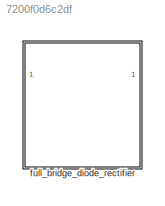
MODEL slx_7200f0d6c2df
KIND library
CONFIG AbsTol = auto
CONFIG EnableMultiTasking = off
CONFIG FixedStep = auto
CONFIG MaxStep = auto
CONFIG MinStep = auto
CONFIG RelTol = 1e-3
CONFIG SampleTimeConstraint = Unconstrained
CONFIG SolverName = VariableStepAuto
CONFIG StartTime = 0.0
CONFIG StopTime = 10.0
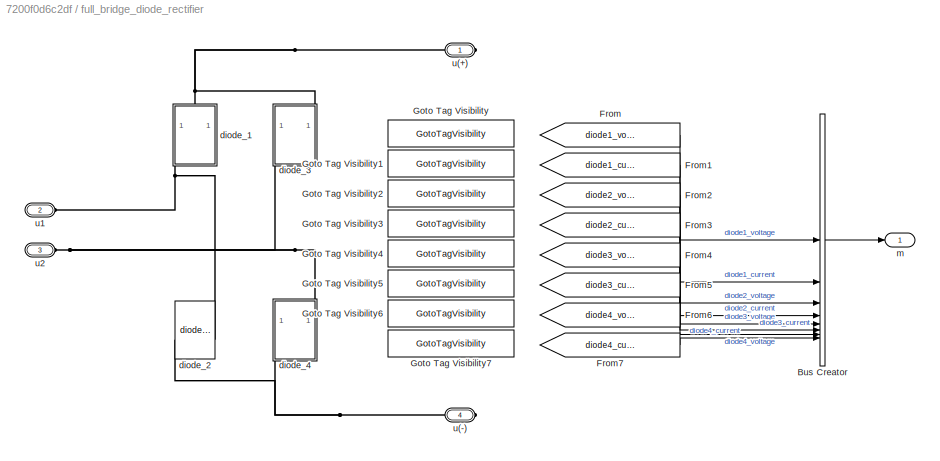
BLOCK [SubSystem] full_bridge_diode_rectifier
BLOCK [BusCreator] full_bridge_diode_rectifier/Bus Creator
  DisplayOption = bar
  InheritFromInputs = on
  Inputs = 8
BLOCK [From] full_bridge_diode_rectifier/From
  GotoTag = diode1_voltage
  TagVisibility = scoped
BLOCK [From] full_bridge_diode_rectifier/From1
  GotoTag = diode1_current
  TagVisibility = scoped
BLOCK [From] full_bridge_diode_rectifier/From2
  GotoTag = diode2_voltage
  TagVisibility = scoped
BLOCK [From] full_bridge_diode_rectifier/From3
  GotoTag = diode2_current
  TagVisibility = scoped
BLOCK [From] full_bridge_diode_rectifier/From4
  GotoTag = diode3_voltage
  TagVisibility = scoped
BLOCK [From] full_bridge_diode_rectifier/From5
  GotoTag = diode3_current
  TagVisibility = scoped
BLOCK [From] full_bridge_diode_rectifier/From6
  GotoTag = diode4_voltage
  TagVisibility = scoped
BLOCK [From] full_bridge_diode_rectifier/From7
  GotoTag = diode4_current
  TagVisibility = scoped
BLOCK [GotoTagVisibility] full_bridge_diode_rectifier/Goto Tag Visibility
  GotoTag = diode1_voltage
BLOCK [GotoTagVisibility] full_bridge_diode_rectifier/Goto Tag Visibility1
  GotoTag = diode1_current
BLOCK [GotoTagVisibility] full_bridge_diode_rectifier/Goto Tag Visibility2
  GotoTag = diode2_voltage
BLOCK [GotoTagVisibility] full_bridge_diode_rectifier/Goto Tag Visibility3
  GotoTag = diode2_current
BLOCK [GotoTagVisibility] full_bridge_diode_rectifier/Goto Tag Visibility4
  GotoTag = diode3_voltage
BLOCK [GotoTagVisibility] full_bridge_diode_rectifier/Goto Tag Visibility5
  GotoTag = diode3_current
BLOCK [GotoTagVisibility] full_bridge_diode_rectifier/Goto Tag Visibility6
  GotoTag = diode4_voltage
BLOCK [GotoTagVisibility] full_bridge_diode_rectifier/Goto Tag Visibility7
  GotoTag = diode4_current
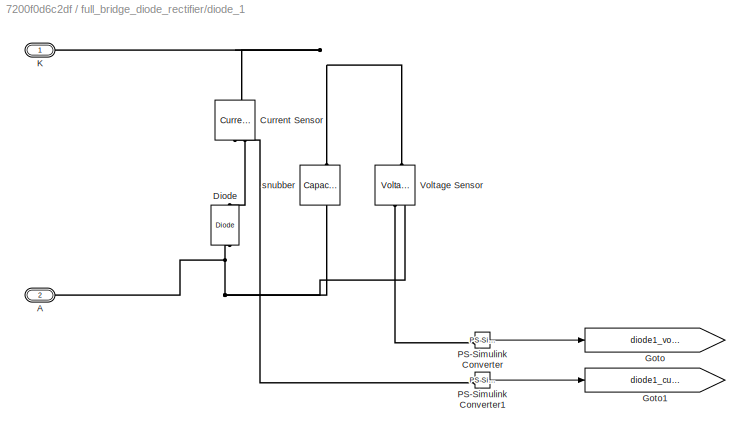
BLOCK [SubSystem] full_bridge_diode_rectifier/diode_1
  NameLocation = left
  PortSchema = {"entries":[{"content":{"sides":[{"content":{},"type":"ConnectorPlacement.EquallySpacedRectSide","uuid":"9277da8d-d460-43e6-8478-dd662f15d226"},{"content":{"side":"RIGHT"},"type":"ConnectorPlacement.EquallySpacedRectSide","uuid":"a7ece396-f1d9-4f4f-a05b-db1fc65d6e1d"},{"content":{"connectorIds":["LConn1"],"side":"TOP"},"type":"ConnectorPlacement.EquallySpacedRectSide","uuid":"fdd70777-e9cf-4317-af...<+354ch>  <repeated x3 — deduplicated; at blocks: diode_1, diode_3, diode_4>
BLOCK [PMIOPort] full_bridge_diode_rectifier/diode_1/A
  NameLocation = top
  Port = 2
  Side = Right
BLOCK [Reference] full_bridge_diode_rectifier/diode_1/Current Sensor  REF=fl_lib/Electrical/Electrical Sensors/Current Sensor
  NameLocation = left
  SourceBlock = fl_lib/Electrical/Electrical Sensors/Current Sensor
  SourceType = Current Sensor
BLOCK [Reference] full_bridge_diode_rectifier/diode_1/Diode  REF=fl_lib/Electrical/Electrical Elements/Diode
  NameLocation = right
  SourceBlock = fl_lib/Electrical/Electrical Elements/Diode
  SourceType = Diode
BLOCK [Goto] full_bridge_diode_rectifier/diode_1/Goto
  GotoTag = diode1_voltage
  TagVisibility = scoped
BLOCK [Goto] full_bridge_diode_rectifier/diode_1/Goto1
  GotoTag = diode1_current
  TagVisibility = scoped
BLOCK [PMIOPort] full_bridge_diode_rectifier/diode_1/K
  NameLocation = top
  Side = Left
BLOCK [Reference] full_bridge_diode_rectifier/diode_1/PS-Simulink Converter  REF=nesl_utility/PS-Simulink
Converter
  SourceBlock = nesl_utility/PS-Simulink\nConverter
  SourceType = PS-Simulink\nConverter
BLOCK [Reference] full_bridge_diode_rectifier/diode_1/PS-Simulink Converter1  REF=nesl_utility/PS-Simulink
Converter
  SourceBlock = nesl_utility/PS-Simulink\nConverter
  SourceType = PS-Simulink\nConverter
BLOCK [Reference] full_bridge_diode_rectifier/diode_1/Voltage Sensor  REF=fl_lib/Electrical/Electrical Sensors/Voltage Sensor
  NameLocation = right
  SourceBlock = fl_lib/Electrical/Electrical Sensors/Voltage Sensor
  SourceType = Voltage Sensor
BLOCK [Reference] full_bridge_diode_rectifier/diode_1/snubber  REF=fl_lib/Electrical/Electrical Elements/Capacitor
  NameLocation = left
  SourceBlock = fl_lib/Electrical/Electrical Elements/Capacitor
  SourceType = Capacitor
BLOCK [Reference] full_bridge_diode_rectifier/diode_2  REF=$bdroot/full_bridge_diode_rectifier/diode_1
  NameLocation = left
  SourceBlock = $bdroot/full_bridge_diode_rectifier/diode_1
  SourceType = SubSystem
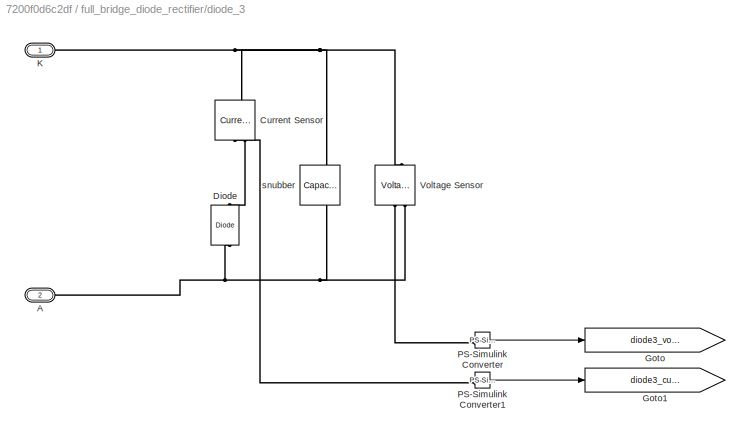
BLOCK [SubSystem] full_bridge_diode_rectifier/diode_3
  NameLocation = left
BLOCK [PMIOPort] full_bridge_diode_rectifier/diode_3/A
  NameLocation = top
  Port = 2
  Side = Right
BLOCK [Reference] full_bridge_diode_rectifier/diode_3/Current Sensor  REF=fl_lib/Electrical/Electrical Sensors/Current Sensor
  NameLocation = left
  SourceBlock = fl_lib/Electrical/Electrical Sensors/Current Sensor
  SourceType = Current Sensor
BLOCK [Reference] full_bridge_diode_rectifier/diode_3/Diode  REF=fl_lib/Electrical/Electrical Elements/Diode
  NameLocation = right
  SourceBlock = fl_lib/Electrical/Electrical Elements/Diode
  SourceType = Diode
BLOCK [Goto] full_bridge_diode_rectifier/diode_3/Goto
  GotoTag = diode3_voltage
  TagVisibility = scoped
BLOCK [Goto] full_bridge_diode_rectifier/diode_3/Goto1
  GotoTag = diode3_current
  TagVisibility = scoped
BLOCK [PMIOPort] full_bridge_diode_rectifier/diode_3/K
  NameLocation = top
  Side = Left
BLOCK [Reference] full_bridge_diode_rectifier/diode_3/PS-Simulink Converter  REF=nesl_utility/PS-Simulink
Converter
  SourceBlock = nesl_utility/PS-Simulink\nConverter
  SourceType = PS-Simulink\nConverter
BLOCK [Reference] full_bridge_diode_rectifier/diode_3/PS-Simulink Converter1  REF=nesl_utility/PS-Simulink
Converter
  SourceBlock = nesl_utility/PS-Simulink\nConverter
  SourceType = PS-Simulink\nConverter
BLOCK [Reference] full_bridge_diode_rectifier/diode_3/Voltage Sensor  REF=fl_lib/Electrical/Electrical Sensors/Voltage Sensor
  NameLocation = right
  SourceBlock = fl_lib/Electrical/Electrical Sensors/Voltage Sensor
  SourceType = Voltage Sensor
BLOCK [Reference] full_bridge_diode_rectifier/diode_3/snubber  REF=fl_lib/Electrical/Electrical Elements/Capacitor
  NameLocation = left
  SourceBlock = fl_lib/Electrical/Electrical Elements/Capacitor
  SourceType = Capacitor
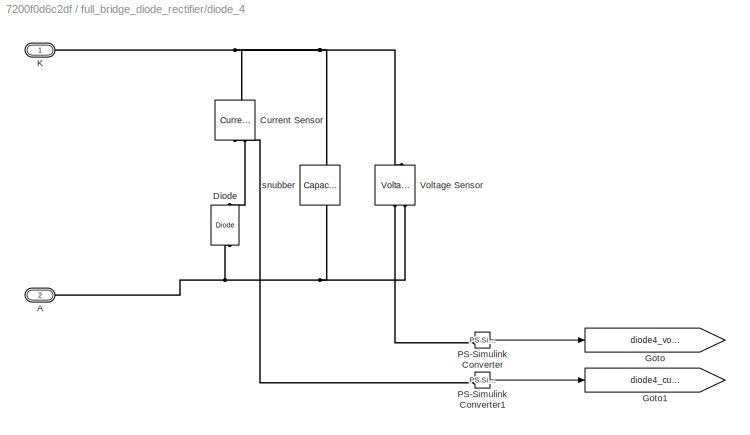
BLOCK [SubSystem] full_bridge_diode_rectifier/diode_4
  NameLocation = left
BLOCK [PMIOPort] full_bridge_diode_rectifier/diode_4/A
  NameLocation = top
  Port = 2
  Side = Right
BLOCK [Reference] full_bridge_diode_rectifier/diode_4/Current Sensor  REF=fl_lib/Electrical/Electrical Sensors/Current Sensor
  NameLocation = left
  SourceBlock = fl_lib/Electrical/Electrical Sensors/Current Sensor
  SourceType = Current Sensor
BLOCK [Reference] full_bridge_diode_rectifier/diode_4/Diode  REF=fl_lib/Electrical/Electrical Elements/Diode
  NameLocation = right
  SourceBlock = fl_lib/Electrical/Electrical Elements/Diode
  SourceType = Diode
BLOCK [Goto] full_bridge_diode_rectifier/diode_4/Goto
  GotoTag = diode4_voltage
  TagVisibility = scoped
BLOCK [Goto] full_bridge_diode_rectifier/diode_4/Goto1
  GotoTag = diode4_current
  TagVisibility = scoped
BLOCK [PMIOPort] full_bridge_diode_rectifier/diode_4/K
  NameLocation = top
  Side = Left
BLOCK [Reference] full_bridge_diode_rectifier/diode_4/PS-Simulink Converter  REF=nesl_utility/PS-Simulink
Converter
  SourceBlock = nesl_utility/PS-Simulink\nConverter
  SourceType = PS-Simulink\nConverter
BLOCK [Reference] full_bridge_diode_rectifier/diode_4/PS-Simulink Converter1  REF=nesl_utility/PS-Simulink
Converter
  SourceBlock = nesl_utility/PS-Simulink\nConverter
  SourceType = PS-Simulink\nConverter
BLOCK [Reference] full_bridge_diode_rectifier/diode_4/Voltage Sensor  REF=fl_lib/Electrical/Electrical Sensors/Voltage Sensor
  NameLocation = right
  SourceBlock = fl_lib/Electrical/Electrical Sensors/Voltage Sensor
  SourceType = Voltage Sensor
BLOCK [Reference] full_bridge_diode_rectifier/diode_4/snubber  REF=fl_lib/Electrical/Electrical Elements/Capacitor
  NameLocation = left
  SourceBlock = fl_lib/Electrical/Electrical Elements/Capacitor
  SourceType = Capacitor
BLOCK [Outport] full_bridge_diode_rectifier/m
BLOCK [PMIOPort] full_bridge_diode_rectifier/u(+)
  Side = Right
BLOCK [PMIOPort] full_bridge_diode_rectifier/u(-)
  Port = 4
  Side = Right
BLOCK [PMIOPort] full_bridge_diode_rectifier/u1
  Port = 2
  Side = Left
BLOCK [PMIOPort] full_bridge_diode_rectifier/u2
  Port = 3
  Side = Left
LINE full_bridge_diode_rectifier/Bus Creator:1 -> full_bridge_diode_rectifier/m:1
LINE full_bridge_diode_rectifier/From1:1 -> full_bridge_diode_rectifier/Bus Creator:2
LINE full_bridge_diode_rectifier/From2:1 -> full_bridge_diode_rectifier/Bus Creator:3
LINE full_bridge_diode_rectifier/From3:1 -> full_bridge_diode_rectifier/Bus Creator:4
LINE full_bridge_diode_rectifier/From4:1 -> full_bridge_diode_rectifier/Bus Creator:5
LINE full_bridge_diode_rectifier/From5:1 -> full_bridge_diode_rectifier/Bus Creator:6
LINE full_bridge_diode_rectifier/From6:1 -> full_bridge_diode_rectifier/Bus Creator:7
LINE full_bridge_diode_rectifier/From7:1 -> full_bridge_diode_rectifier/Bus Creator:8
LINE full_bridge_diode_rectifier/From:1 -> full_bridge_diode_rectifier/Bus Creator:1
LINE full_bridge_diode_rectifier/diode_1/PS-Simulink Converter1:1 -> full_bridge_diode_rectifier/diode_1/Goto1:1
LINE full_bridge_diode_rectifier/diode_1/PS-Simulink Converter:1 -> full_bridge_diode_rectifier/diode_1/Goto:1
LINE full_bridge_diode_rectifier/diode_3/PS-Simulink Converter1:1 -> full_bridge_diode_rectifier/diode_3/Goto1:1
LINE full_bridge_diode_rectifier/diode_3/PS-Simulink Converter:1 -> full_bridge_diode_rectifier/diode_3/Goto:1
LINE full_bridge_diode_rectifier/diode_4/PS-Simulink Converter1:1 -> full_bridge_diode_rectifier/diode_4/Goto1:1
LINE full_bridge_diode_rectifier/diode_4/PS-Simulink Converter:1 -> full_bridge_diode_rectifier/diode_4/Goto:1
PNET net1: full_bridge_diode_rectifier/diode_1/A:RConn1 -- full_bridge_diode_rectifier/diode_1/Diode:LConn1 -- full_bridge_diode_rectifier/diode_1/Voltage Sensor:RConn2 -- full_bridge_diode_rectifier/diode_1/snubber:RConn1
PNET net2: full_bridge_diode_rectifier/diode_1/Current Sensor:LConn1 -- full_bridge_diode_rectifier/diode_1/K:RConn1 -- full_bridge_diode_rectifier/diode_1/Voltage Sensor:LConn1 -- full_bridge_diode_rectifier/diode_1/snubber:LConn1
PLINE full_bridge_diode_rectifier/diode_1/Current Sensor:RConn1 -- full_bridge_diode_rectifier/diode_1/PS-Simulink Converter1:LConn1
PLINE full_bridge_diode_rectifier/diode_1/Current Sensor:RConn2 -- full_bridge_diode_rectifier/diode_1/Diode:RConn1
PLINE full_bridge_diode_rectifier/diode_1/PS-Simulink Converter:LConn1 -- full_bridge_diode_rectifier/diode_1/Voltage Sensor:RConn1
PNET net3: full_bridge_diode_rectifier/diode_1:LConn1 -- full_bridge_diode_rectifier/diode_3:LConn1 -- full_bridge_diode_rectifier/u(+):RConn1
PNET net4: full_bridge_diode_rectifier/diode_1:RConn1 -- full_bridge_diode_rectifier/diode_2:LConn1 -- full_bridge_diode_rectifier/u1:RConn1
PNET net5: full_bridge_diode_rectifier/diode_2:RConn1 -- full_bridge_diode_rectifier/diode_4:RConn1 -- full_bridge_diode_rectifier/u(-):RConn1
PNET net6: full_bridge_diode_rectifier/diode_3/A:RConn1 -- full_bridge_diode_rectifier/diode_3/Diode:LConn1 -- full_bridge_diode_rectifier/diode_3/Voltage Sensor:RConn2 -- full_bridge_diode_rectifier/diode_3/snubber:RConn1
PNET net7: full_bridge_diode_rectifier/diode_3/Current Sensor:LConn1 -- full_bridge_diode_rectifier/diode_3/K:RConn1 -- full_bridge_diode_rectifier/diode_3/Voltage Sensor:LConn1 -- full_bridge_diode_rectifier/diode_3/snubber:LConn1
PLINE full_bridge_diode_rectifier/diode_3/Current Sensor:RConn1 -- full_bridge_diode_rectifier/diode_3/PS-Simulink Converter1:LConn1
PLINE full_bridge_diode_rectifier/diode_3/Current Sensor:RConn2 -- full_bridge_diode_rectifier/diode_3/Diode:RConn1
PLINE full_bridge_diode_rectifier/diode_3/PS-Simulink Converter:LConn1 -- full_bridge_diode_rectifier/diode_3/Voltage Sensor:RConn1
PNET net8: full_bridge_diode_rectifier/diode_3:RConn1 -- full_bridge_diode_rectifier/diode_4:LConn1 -- full_bridge_diode_rectifier/u2:RConn1
PNET net9: full_bridge_diode_rectifier/diode_4/A:RConn1 -- full_bridge_diode_rectifier/diode_4/Diode:LConn1 -- full_bridge_diode_rectifier/diode_4/Voltage Sensor:RConn2 -- full_bridge_diode_rectifier/diode_4/snubber:RConn1
PNET net10: full_bridge_diode_rectifier/diode_4/Current Sensor:LConn1 -- full_bridge_diode_rectifier/diode_4/K:RConn1 -- full_bridge_diode_rectifier/diode_4/Voltage Sensor:LConn1 -- full_bridge_diode_rectifier/diode_4/snubber:LConn1
PLINE full_bridge_diode_rectifier/diode_4/Current Sensor:RConn1 -- full_bridge_diode_rectifier/diode_4/PS-Simulink Converter1:LConn1
PLINE full_bridge_diode_rectifier/diode_4/Current Sensor:RConn2 -- full_bridge_diode_rectifier/diode_4/Diode:RConn1
PLINE full_bridge_diode_rectifier/diode_4/PS-Simulink Converter:LConn1 -- full_bridge_diode_rectifier/diode_4/Voltage Sensor:RConn1
note: PNET lines group multi-terminal physical nets as a canonical sorted terminal list (undirected conserving connections); 2-terminal nets keep the pairwise PLINE form
